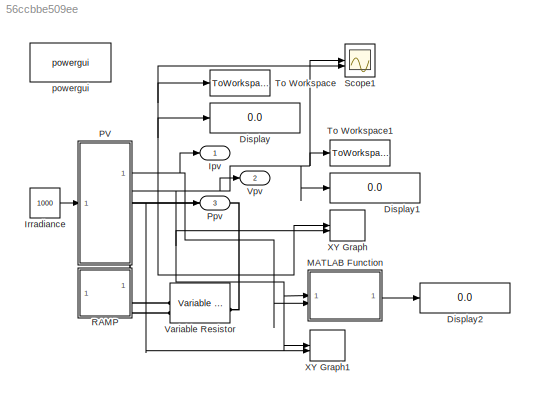
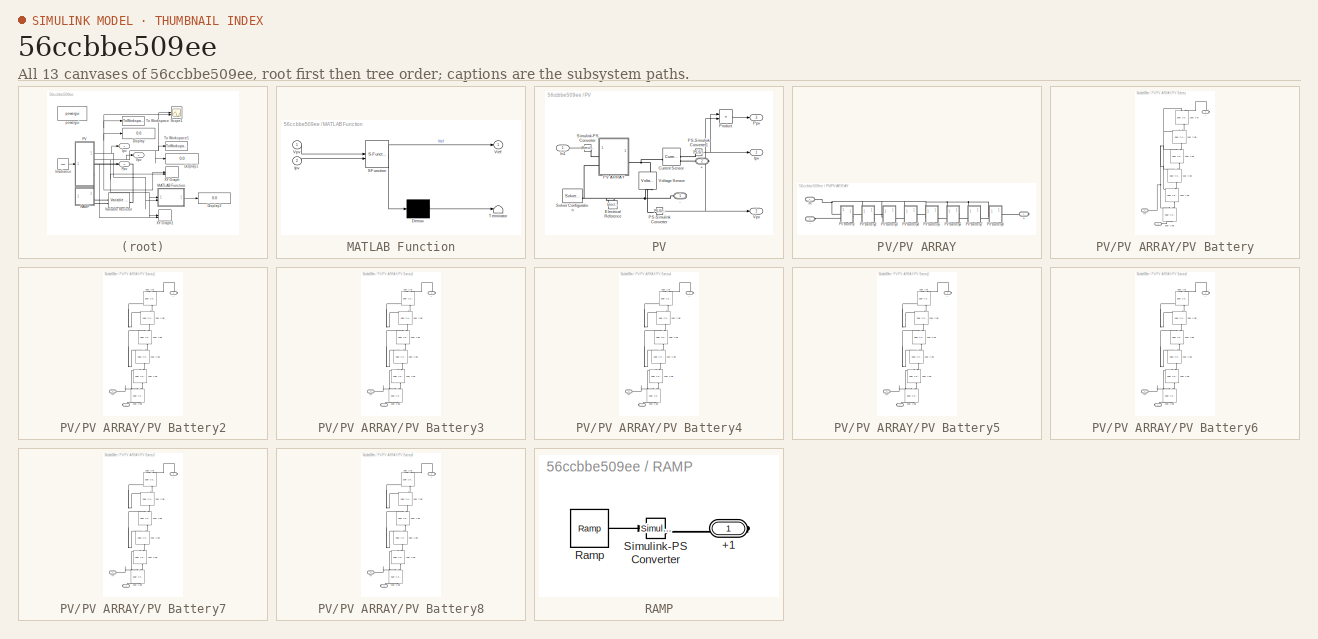
[diagram: thumbnail index - all 13 canvases of the model, root first then tree order]
MODEL slx_56ccbbe509ee
KIND model
CONFIG AbsTol = auto
CONFIG EnableMultiTasking = off
CONFIG FixedStep = auto
CONFIG MaxStep = auto
CONFIG MinStep = auto
CONFIG RelTol = 1e-3
CONFIG SampleTimeConstraint = Unconstrained
CONFIG SolverName = VariableStepAuto
CONFIG StartTime = 0.0
CONFIG StopTime = 0.5
BLOCK [Display] Display
  Decimation = 1
BLOCK [Display] Display1
  Decimation = 1
BLOCK [Display] Display2
  Decimation = 1
BLOCK [Outport] Ipv
BLOCK [Constant] Irradiance
  Value = 1000
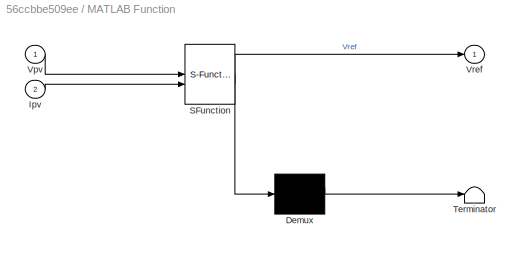
BLOCK [SubSystem] MATLAB Function
  ErrorFcn = Stateflow.Translate.translate
  PermitHierarchicalResolution = ExplicitOnly
  SFBlockType = MATLAB Function
  TreatAsAtomicUnit = on
BLOCK [Demux] MATLAB Function/ Demux 
  Outputs = 1
BLOCK [S-Function] MATLAB Function/ SFunction 
  EnableBusSupport = on
  FunctionName = sf_sfun
  PortCounts = [2 2]
  SFcnIsStateOwnerBlock = off
  SFunctionDeploymentMode = off
  Tag = Stateflow S-Function 2
BLOCK [Terminator] MATLAB Function/ Terminator 
BLOCK [Inport] MATLAB Function/Ipv
  Port = 2
BLOCK [Inport] MATLAB Function/Vpv
BLOCK [Outport] MATLAB Function/Vref
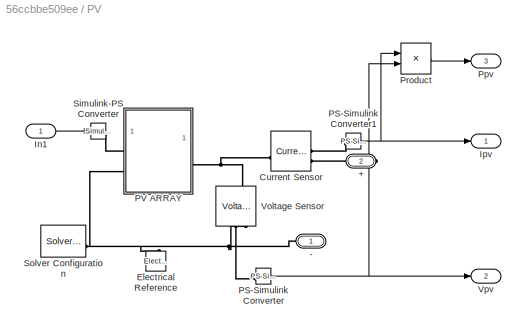
BLOCK [SubSystem] PV
  NameLocation = top
BLOCK [PMIOPort] PV/+
  Port = 2
  Side = Right
BLOCK [PMIOPort] PV/-
  NameLocation = top
  Side = Right
BLOCK [Reference] PV/Current Sensor  REF=fl_lib/Electrical/Electrical Sensors/Current Sensor
  SourceBlock = fl_lib/Electrical/Electrical Sensors/Current Sensor
  SourceType = Current Sensor
BLOCK [Reference] PV/Electrical Reference  REF=fl_lib/Electrical/Electrical Elements/Electrical Reference
  NameLocation = right
  SourceBlock = fl_lib/Electrical/Electrical Elements/Electrical Reference
  SourceType = Electrical Reference
BLOCK [Inport] PV/In1
BLOCK [Outport] PV/Ipv
BLOCK [Reference] PV/PS-Simulink Converter  REF=nesl_utility/PS-Simulink
Converter
  SourceBlock = nesl_utility/PS-Simulink\nConverter
  SourceType = PS-Simulink\nConverter
BLOCK [Reference] PV/PS-Simulink Converter1  REF=nesl_utility/PS-Simulink
Converter
  SourceBlock = nesl_utility/PS-Simulink\nConverter
  SourceType = PS-Simulink\nConverter
BLOCK [SubSystem] PV/PV ARRAY
BLOCK [PMIOPort] PV/PV ARRAY/+
  Port = 2
  Side = Right
BLOCK [PMIOPort] PV/PV ARRAY/-
  Port = 3
  Side = Left
BLOCK [PMIOPort] PV/PV ARRAY/IR
  Side = Left
BLOCK [SubSystem] PV/PV ARRAY/PV Battery
  NameLocation = top
  PortSchema = {"entries":[{"content":{"sides":[{"content":{"connectorIds":["LConn1","LConn2"]},"type":"ConnectorPlacement.EquallySpacedRectSide","uuid":"343a5c80-c490-4c63-968f-4227f8b0bc69"},{"content":{"side":"RIGHT"},"type":"ConnectorPlacement.EquallySpacedRectSide","uuid":"ee4aa178-7663-40d5-bcc3-f91d4c44b2a7"},{"content":{"side":"TOP"},"type":"ConnectorPlacement.EquallySpacedRectSide","uuid":"a03aa1aa-4889...<+362ch>
BLOCK [PMIOPort] PV/PV ARRAY/PV Battery/+
  NameLocation = top
  Port = 3
  Side = Right
BLOCK [PMIOPort] PV/PV ARRAY/PV Battery/-
  Port = 2
  Side = Left
BLOCK [PMIOPort] PV/PV ARRAY/PV Battery/IR
  Side = Left
BLOCK [Reference] PV/PV ARRAY/PV Battery/Solar Cell  REF=ee_lib/Sources/Solar Cell
  NameLocation = right
  SourceBlock = ee_lib/Sources/Solar Cell
  SourceType = Solar Cell
BLOCK [Reference] PV/PV ARRAY/PV Battery/Solar Cell1  REF=ee_lib/Sources/Solar Cell
  NameLocation = right
  SourceBlock = ee_lib/Sources/Solar Cell
  SourceType = Solar Cell
BLOCK [Reference] PV/PV ARRAY/PV Battery/Solar Cell2  REF=ee_lib/Sources/Solar Cell
  NameLocation = right
  SourceBlock = ee_lib/Sources/Solar Cell
  SourceType = Solar Cell
BLOCK [Reference] PV/PV ARRAY/PV Battery/Solar Cell3  REF=ee_lib/Sources/Solar Cell
  NameLocation = right
  SourceBlock = ee_lib/Sources/Solar Cell
  SourceType = Solar Cell
BLOCK [Reference] PV/PV ARRAY/PV Battery/Solar Cell4  REF=ee_lib/Sources/Solar Cell
  NameLocation = right
  SourceBlock = ee_lib/Sources/Solar Cell
  SourceType = Solar Cell
BLOCK [Reference] PV/PV ARRAY/PV Battery/Solar Cell5  REF=ee_lib/Sources/Solar Cell
  NameLocation = right
  SourceBlock = ee_lib/Sources/Solar Cell
  SourceType = Solar Cell
BLOCK [SubSystem] PV/PV ARRAY/PV Battery2
  NameLocation = top
  PortSchema = {"entries":[{"content":{"sides":[{"content":{"connectorIds":["LConn1"]},"type":"ConnectorPlacement.EquallySpacedRectSide","uuid":"343a5c80-c490-4c63-968f-4227f8b0bc69"},{"content":{"side":"RIGHT"},"type":"ConnectorPlacement.EquallySpacedRectSide","uuid":"ee4aa178-7663-40d5-bcc3-f91d4c44b2a7"},{"content":{"side":"TOP"},"type":"ConnectorPlacement.EquallySpacedRectSide","uuid":"a03aa1aa-4889-4cfe-9c8...<+362ch>  <repeated x6 — deduplicated; at blocks: PV Battery2, PV Battery3, PV Battery4, PV Battery5, PV Battery6, PV Battery7>
BLOCK [PMIOPort] PV/PV ARRAY/PV Battery2/+
  NameLocation = top
  Port = 3
  Side = Right
BLOCK [PMIOPort] PV/PV ARRAY/PV Battery2/-
  Port = 2
  Side = Right
BLOCK [PMIOPort] PV/PV ARRAY/PV Battery2/IR
  Side = Left
BLOCK [Reference] PV/PV ARRAY/PV Battery2/Solar Cell  REF=ee_lib/Sources/Solar Cell
  NameLocation = right
  SourceBlock = ee_lib/Sources/Solar Cell
  SourceType = Solar Cell
BLOCK [Reference] PV/PV ARRAY/PV Battery2/Solar Cell1  REF=ee_lib/Sources/Solar Cell
  NameLocation = right
  SourceBlock = ee_lib/Sources/Solar Cell
  SourceType = Solar Cell
BLOCK [Reference] PV/PV ARRAY/PV Battery2/Solar Cell2  REF=ee_lib/Sources/Solar Cell
  NameLocation = right
  SourceBlock = ee_lib/Sources/Solar Cell
  SourceType = Solar Cell
BLOCK [Reference] PV/PV ARRAY/PV Battery2/Solar Cell3  REF=ee_lib/Sources/Solar Cell
  NameLocation = right
  SourceBlock = ee_lib/Sources/Solar Cell
  SourceType = Solar Cell
BLOCK [Reference] PV/PV ARRAY/PV Battery2/Solar Cell4  REF=ee_lib/Sources/Solar Cell
  NameLocation = right
  SourceBlock = ee_lib/Sources/Solar Cell
  SourceType = Solar Cell
BLOCK [Reference] PV/PV ARRAY/PV Battery2/Solar Cell5  REF=ee_lib/Sources/Solar Cell
  NameLocation = right
  SourceBlock = ee_lib/Sources/Solar Cell
  SourceType = Solar Cell
BLOCK [SubSystem] PV/PV ARRAY/PV Battery3
  NameLocation = top
BLOCK [PMIOPort] PV/PV ARRAY/PV Battery3/+
  NameLocation = top
  Port = 3
  Side = Right
BLOCK [PMIOPort] PV/PV ARRAY/PV Battery3/-
  Port = 2
  Side = Right
BLOCK [PMIOPort] PV/PV ARRAY/PV Battery3/IR
  Side = Left
BLOCK [Reference] PV/PV ARRAY/PV Battery3/Solar Cell  REF=ee_lib/Sources/Solar Cell
  NameLocation = right
  SourceBlock = ee_lib/Sources/Solar Cell
  SourceType = Solar Cell
BLOCK [Reference] PV/PV ARRAY/PV Battery3/Solar Cell1  REF=ee_lib/Sources/Solar Cell
  NameLocation = right
  SourceBlock = ee_lib/Sources/Solar Cell
  SourceType = Solar Cell
BLOCK [Reference] PV/PV ARRAY/PV Battery3/Solar Cell2  REF=ee_lib/Sources/Solar Cell
  NameLocation = right
  SourceBlock = ee_lib/Sources/Solar Cell
  SourceType = Solar Cell
BLOCK [Reference] PV/PV ARRAY/PV Battery3/Solar Cell3  REF=ee_lib/Sources/Solar Cell
  NameLocation = right
  SourceBlock = ee_lib/Sources/Solar Cell
  SourceType = Solar Cell
BLOCK [Reference] PV/PV ARRAY/PV Battery3/Solar Cell4  REF=ee_lib/Sources/Solar Cell
  NameLocation = right
  SourceBlock = ee_lib/Sources/Solar Cell
  SourceType = Solar Cell
BLOCK [Reference] PV/PV ARRAY/PV Battery3/Solar Cell5  REF=ee_lib/Sources/Solar Cell
  NameLocation = right
  SourceBlock = ee_lib/Sources/Solar Cell
  SourceType = Solar Cell
BLOCK [SubSystem] PV/PV ARRAY/PV Battery4
  NameLocation = top
BLOCK [PMIOPort] PV/PV ARRAY/PV Battery4/+
  NameLocation = top
  Port = 3
  Side = Right
BLOCK [PMIOPort] PV/PV ARRAY/PV Battery4/-
  Port = 2
  Side = Right
BLOCK [PMIOPort] PV/PV ARRAY/PV Battery4/IR
  Side = Left
BLOCK [Reference] PV/PV ARRAY/PV Battery4/Solar Cell  REF=ee_lib/Sources/Solar Cell
  NameLocation = right
  SourceBlock = ee_lib/Sources/Solar Cell
  SourceType = Solar Cell
BLOCK [Reference] PV/PV ARRAY/PV Battery4/Solar Cell1  REF=ee_lib/Sources/Solar Cell
  NameLocation = right
  SourceBlock = ee_lib/Sources/Solar Cell
  SourceType = Solar Cell
BLOCK [Reference] PV/PV ARRAY/PV Battery4/Solar Cell2  REF=ee_lib/Sources/Solar Cell
  NameLocation = right
  SourceBlock = ee_lib/Sources/Solar Cell
  SourceType = Solar Cell
BLOCK [Reference] PV/PV ARRAY/PV Battery4/Solar Cell3  REF=ee_lib/Sources/Solar Cell
  NameLocation = right
  SourceBlock = ee_lib/Sources/Solar Cell
  SourceType = Solar Cell
BLOCK [Reference] PV/PV ARRAY/PV Battery4/Solar Cell4  REF=ee_lib/Sources/Solar Cell
  NameLocation = right
  SourceBlock = ee_lib/Sources/Solar Cell
  SourceType = Solar Cell
BLOCK [Reference] PV/PV ARRAY/PV Battery4/Solar Cell5  REF=ee_lib/Sources/Solar Cell
  NameLocation = right
  SourceBlock = ee_lib/Sources/Solar Cell
  SourceType = Solar Cell
BLOCK [SubSystem] PV/PV ARRAY/PV Battery5
  NameLocation = top
BLOCK [PMIOPort] PV/PV ARRAY/PV Battery5/+
  NameLocation = top
  Port = 3
  Side = Right
BLOCK [PMIOPort] PV/PV ARRAY/PV Battery5/-
  Port = 2
  Side = Right
BLOCK [PMIOPort] PV/PV ARRAY/PV Battery5/IR
  Side = Left
BLOCK [Reference] PV/PV ARRAY/PV Battery5/Solar Cell  REF=ee_lib/Sources/Solar Cell
  NameLocation = right
  SourceBlock = ee_lib/Sources/Solar Cell
  SourceType = Solar Cell
BLOCK [Reference] PV/PV ARRAY/PV Battery5/Solar Cell1  REF=ee_lib/Sources/Solar Cell
  NameLocation = right
  SourceBlock = ee_lib/Sources/Solar Cell
  SourceType = Solar Cell
BLOCK [Reference] PV/PV ARRAY/PV Battery5/Solar Cell2  REF=ee_lib/Sources/Solar Cell
  NameLocation = right
  SourceBlock = ee_lib/Sources/Solar Cell
  SourceType = Solar Cell
BLOCK [Reference] PV/PV ARRAY/PV Battery5/Solar Cell3  REF=ee_lib/Sources/Solar Cell
  NameLocation = right
  SourceBlock = ee_lib/Sources/Solar Cell
  SourceType = Solar Cell
BLOCK [Reference] PV/PV ARRAY/PV Battery5/Solar Cell4  REF=ee_lib/Sources/Solar Cell
  NameLocation = right
  SourceBlock = ee_lib/Sources/Solar Cell
  SourceType = Solar Cell
BLOCK [Reference] PV/PV ARRAY/PV Battery5/Solar Cell5  REF=ee_lib/Sources/Solar Cell
  NameLocation = right
  SourceBlock = ee_lib/Sources/Solar Cell
  SourceType = Solar Cell
BLOCK [SubSystem] PV/PV ARRAY/PV Battery6
  NameLocation = top
BLOCK [PMIOPort] PV/PV ARRAY/PV Battery6/+
  NameLocation = top
  Port = 3
  Side = Right
BLOCK [PMIOPort] PV/PV ARRAY/PV Battery6/-
  Port = 2
  Side = Right
BLOCK [PMIOPort] PV/PV ARRAY/PV Battery6/IR
  Side = Left
BLOCK [Reference] PV/PV ARRAY/PV Battery6/Solar Cell  REF=ee_lib/Sources/Solar Cell
  NameLocation = right
  SourceBlock = ee_lib/Sources/Solar Cell
  SourceType = Solar Cell
BLOCK [Reference] PV/PV ARRAY/PV Battery6/Solar Cell1  REF=ee_lib/Sources/Solar Cell
  NameLocation = right
  SourceBlock = ee_lib/Sources/Solar Cell
  SourceType = Solar Cell
BLOCK [Reference] PV/PV ARRAY/PV Battery6/Solar Cell2  REF=ee_lib/Sources/Solar Cell
  NameLocation = right
  SourceBlock = ee_lib/Sources/Solar Cell
  SourceType = Solar Cell
BLOCK [Reference] PV/PV ARRAY/PV Battery6/Solar Cell3  REF=ee_lib/Sources/Solar Cell
  NameLocation = right
  SourceBlock = ee_lib/Sources/Solar Cell
  SourceType = Solar Cell
BLOCK [Reference] PV/PV ARRAY/PV Battery6/Solar Cell4  REF=ee_lib/Sources/Solar Cell
  NameLocation = right
  SourceBlock = ee_lib/Sources/Solar Cell
  SourceType = Solar Cell
BLOCK [Reference] PV/PV ARRAY/PV Battery6/Solar Cell5  REF=ee_lib/Sources/Solar Cell
  NameLocation = right
  SourceBlock = ee_lib/Sources/Solar Cell
  SourceType = Solar Cell
BLOCK [SubSystem] PV/PV ARRAY/PV Battery7
  NameLocation = top
BLOCK [PMIOPort] PV/PV ARRAY/PV Battery7/+
  NameLocation = top
  Port = 3
  Side = Right
BLOCK [PMIOPort] PV/PV ARRAY/PV Battery7/-
  Port = 2
  Side = Right
BLOCK [PMIOPort] PV/PV ARRAY/PV Battery7/IR
  Side = Left
BLOCK [Reference] PV/PV ARRAY/PV Battery7/Solar Cell  REF=ee_lib/Sources/Solar Cell
  NameLocation = right
  SourceBlock = ee_lib/Sources/Solar Cell
  SourceType = Solar Cell
BLOCK [Reference] PV/PV ARRAY/PV Battery7/Solar Cell1  REF=ee_lib/Sources/Solar Cell
  NameLocation = right
  SourceBlock = ee_lib/Sources/Solar Cell
  SourceType = Solar Cell
BLOCK [Reference] PV/PV ARRAY/PV Battery7/Solar Cell2  REF=ee_lib/Sources/Solar Cell
  NameLocation = right
  SourceBlock = ee_lib/Sources/Solar Cell
  SourceType = Solar Cell
BLOCK [Reference] PV/PV ARRAY/PV Battery7/Solar Cell3  REF=ee_lib/Sources/Solar Cell
  NameLocation = right
  SourceBlock = ee_lib/Sources/Solar Cell
  SourceType = Solar Cell
BLOCK [Reference] PV/PV ARRAY/PV Battery7/Solar Cell4  REF=ee_lib/Sources/Solar Cell
  NameLocation = right
  SourceBlock = ee_lib/Sources/Solar Cell
  SourceType = Solar Cell
BLOCK [Reference] PV/PV ARRAY/PV Battery7/Solar Cell5  REF=ee_lib/Sources/Solar Cell
  NameLocation = right
  SourceBlock = ee_lib/Sources/Solar Cell
  SourceType = Solar Cell
BLOCK [SubSystem] PV/PV ARRAY/PV Battery8
  NameLocation = top
  PortSchema = {"entries":[{"content":{"sides":[{"content":{"connectorIds":["LConn1"]},"type":"ConnectorPlacement.EquallySpacedRectSide","uuid":"343a5c80-c490-4c63-968f-4227f8b0bc69"},{"content":{"connectorIds":["RConn1"],"side":"RIGHT"},"type":"ConnectorPlacement.EquallySpacedRectSide","uuid":"ee4aa178-7663-40d5-bcc3-f91d4c44b2a7"},{"content":{"side":"TOP"},"type":"ConnectorPlacement.EquallySpacedRectSide","uui...<+379ch>
BLOCK [PMIOPort] PV/PV ARRAY/PV Battery8/+
  NameLocation = top
  Port = 2
  Side = Right
BLOCK [PMIOPort] PV/PV ARRAY/PV Battery8/-
  Port = 3
  Side = Right
BLOCK [PMIOPort] PV/PV ARRAY/PV Battery8/IR
  Side = Left
BLOCK [Reference] PV/PV ARRAY/PV Battery8/Solar Cell  REF=ee_lib/Sources/Solar Cell
  NameLocation = right
  SourceBlock = ee_lib/Sources/Solar Cell
  SourceType = Solar Cell
BLOCK [Reference] PV/PV ARRAY/PV Battery8/Solar Cell1  REF=ee_lib/Sources/Solar Cell
  NameLocation = right
  SourceBlock = ee_lib/Sources/Solar Cell
  SourceType = Solar Cell
BLOCK [Reference] PV/PV ARRAY/PV Battery8/Solar Cell2  REF=ee_lib/Sources/Solar Cell
  NameLocation = right
  SourceBlock = ee_lib/Sources/Solar Cell
  SourceType = Solar Cell
BLOCK [Reference] PV/PV ARRAY/PV Battery8/Solar Cell3  REF=ee_lib/Sources/Solar Cell
  NameLocation = right
  SourceBlock = ee_lib/Sources/Solar Cell
  SourceType = Solar Cell
BLOCK [Reference] PV/PV ARRAY/PV Battery8/Solar Cell4  REF=ee_lib/Sources/Solar Cell
  NameLocation = right
  SourceBlock = ee_lib/Sources/Solar Cell
  SourceType = Solar Cell
BLOCK [Reference] PV/PV ARRAY/PV Battery8/Solar Cell5  REF=ee_lib/Sources/Solar Cell
  NameLocation = right
  SourceBlock = ee_lib/Sources/Solar Cell
  SourceType = Solar Cell
BLOCK [Outport] PV/Ppv
  Port = 3
BLOCK [Product] PV/Product
BLOCK [Reference] PV/Simulink-PS Converter  REF=nesl_utility/Simulink-PS
Converter
  SourceBlock = nesl_utility/Simulink-PS\nConverter
  SourceType = Simulink-PS\nConverter
BLOCK [Reference] PV/Solver Configuration  REF=nesl_utility/Solver
Configuration
  SourceBlock = nesl_utility/Solver\nConfiguration
  SourceType = Solver\nConfiguration
BLOCK [Reference] PV/Voltage Sensor  REF=fl_lib/Electrical/Electrical Sensors/Voltage Sensor
  NameLocation = right
  SourceBlock = fl_lib/Electrical/Electrical Sensors/Voltage Sensor
  SourceType = Voltage Sensor
BLOCK [Outport] PV/Vpv
  Port = 2
BLOCK [Outport] Ppv
  NameLocation = top
  Port = 3
BLOCK [SubSystem] RAMP
BLOCK [PMIOPort] RAMP/+1
  Side = Right
BLOCK [Reference] RAMP/Ramp  REF=simulink/Sources/Ramp
  SourceBlock = simulink/Sources/Ramp
  SourceType = Ramp
BLOCK [Reference] RAMP/Simulink-PS Converter  REF=nesl_utility/Simulink-PS
Converter
  SourceBlock = nesl_utility/Simulink-PS\nConverter
  SourceType = Simulink-PS\nConverter
BLOCK [Scope] Scope1
  Floating = off
  NumInputPorts = 2
  ScopeSpecificationString = Simulink.scopes.TimeScopeBlockCfg('CurrentConfiguration', extmgr.ConfigurationSet(extmgr.Configuration('Core','General UI',true),extmgr.Configuration('Core','Source UI',true),extmgr.Configuration('Sources','WiredSimulink',true,'DataLoggingVariableName','ScopeData1'),extmgr.Configuration('Visuals','Time Domain',true,'SerializedDisplays',{struct('MinYLimReal','-3.59635','MaxYLimReal','32.36712','YLa...<+2198ch>
BLOCK [ToWorkspace] To Workspace
  FixptAsFi = on
  MaxDataPoints = inf
  SampleTime = -1
  SaveFormat = Timeseries
  VariableName = simout
BLOCK [ToWorkspace] To Workspace1
  FixptAsFi = on
  MaxDataPoints = inf
  SampleTime = -1
  SaveFormat = Timeseries
  VariableName = simout1
BLOCK [Reference] Variable Resistor  REF=fl_lib/Electrical/Electrical Elements/Variable Resistor
  SourceBlock = fl_lib/Electrical/Electrical Elements/Variable Resistor
  SourceType = Variable Resistor
BLOCK [Outport] Vpv
  Port = 2
BLOCK [Record] XY Graph
  CompatibilityTag = XY
  FileSettingsInternal = {"entries":[{"content":{"excelSettings":{"content":{},"type":"Streamout.ExcelSettings"}},"type":"Streamout.FileSettingStorage","uuid":""}],"packageUris":["http:\/\/schema.mathworks.com\/mf0\/streamout_blocks\/R2020a"],"version":"1.0"}
  Layout = [1 1]
  SignalsInternal = {"entries":[{"content":{"signals":[{"content":{"blockPath":[],"dimensions":[1],"domain":"","lineColor":"#a2142f","plots":[ 1 ],"port":1,"signalID":1,"signalName":"PV:1"},"type":"RecordBlkView.Signal","uuid":""},{"content":{"blockPath":[],"dimensions":[1],"domain":"","lineColor":"#139fff","plots":[ 1 ],"port":2,"signalID":2,"signalName":"PV:2"},"type":"RecordBlkView.Signal","uuid":""}]},"type":"Rec...<+132ch>
  VisualizationBindings = {"xyplotplugin":{"info":[{"series":[{"bindingParametersList":[{"parameter":"X-Axis","signalID":1,"signalName":"PV:1"},{"parameter":"Y-Axis","signalID":2,"signalName":"PV:2"}],"seriesID":0}],"subplotID":1}]}}
BLOCK [Record] XY Graph1
  CompatibilityTag = XY
  FileSettingsInternal = {"entries":[{"content":{"excelSettings":{"content":{},"type":"Streamout.ExcelSettings"}},"type":"Streamout.FileSettingStorage","uuid":""}],"packageUris":["http:\/\/schema.mathworks.com\/mf0\/streamout_blocks\/R2020a"],"version":"1.0"}
  Layout = [1 1]
  SignalsInternal = {"entries":[{"content":{"signals":[{"content":{"blockPath":[],"dimensions":[1],"domain":"","lineColor":"#a2142f","plots":[ 1 ],"port":1,"signalID":1,"signalName":"Vpv"},"type":"RecordBlkView.Signal","uuid":""},{"content":{"blockPath":[],"dimensions":[1],"domain":"","lineColor":"#139fff","plots":[ 1 ],"port":2,"signalID":2,"signalName":"Ppv"},"type":"RecordBlkView.Signal","uuid":""}]},"type":"Recor...<+130ch>
  VisualizationBindings = {"xyplotplugin":{"info":[{"series":[{"bindingParametersList":[{"parameter":"X-Axis","signalID":1,"signalName":"Vpv"},{"parameter":"Y-Axis","signalID":2,"signalName":"Ppv"}],"seriesID":0}],"subplotID":1}]}}
BLOCK [Reference] powergui  REF=spspowerguiLib/powergui
  LibrarySourceBlock = sps_lib/powergui
  Priority = 1
  SourceBlock = spspowerguiLib/powergui
  SourceType = PSB option menu block
LINE Irradiance:1 -> PV:1
LINE MATLAB Function:1 -> Display2:1
LINE PV/In1:1 -> PV/Simulink-PS Converter:1
NET PV/PS-Simulink Converter1:1 -> PV/Ipv:1, PV/Product:1
NET PV/PS-Simulink Converter:1 -> PV/Product:2, PV/Vpv:1
LINE PV/Product:1 -> PV/Ppv:1
NET PV:1 -> Display:1, Ipv:1, MATLAB Function:2, Scope1:2, To Workspace:1, XY Graph:1
NET PV:2 -> Display1:1, MATLAB Function:1, Scope1:1, To Workspace1:1, Vpv:1, XY Graph1:1, XY Graph:2
NET PV:3 -> Ppv:1, XY Graph1:2
LINE RAMP/Ramp:1 -> RAMP/Simulink-PS Converter:1
PLINE PV/+:RConn1 -- PV/Current Sensor:RConn2
PNET net1: PV/-:RConn1 -- PV/Electrical Reference:LConn1 -- PV/PV ARRAY:LConn2 -- PV/Solver Configuration:RConn1 -- PV/Voltage Sensor:RConn2
PNET net2: PV/Current Sensor:LConn1 -- PV/PV ARRAY:RConn1 -- PV/Voltage Sensor:LConn1
PLINE PV/Current Sensor:RConn1 -- PV/PS-Simulink Converter1:LConn1
PLINE PV/PS-Simulink Converter:LConn1 -- PV/Voltage Sensor:RConn1
PLINE PV/PV ARRAY/+:RConn1 -- PV/PV ARRAY/PV Battery8:RConn1
PLINE PV/PV ARRAY/-:RConn1 -- PV/PV ARRAY/PV Battery:LConn2
PNET net3: PV/PV ARRAY/IR:RConn1 -- PV/PV ARRAY/PV Battery2:LConn1 -- PV/PV ARRAY/PV Battery3:LConn1 -- PV/PV ARRAY/PV Battery4:LConn1 -- PV/PV ARRAY/PV Battery5:LConn1 -- PV/PV ARRAY/PV Battery6:LConn1 -- PV/PV ARRAY/PV Battery7:LConn1 -- PV/PV ARRAY/PV Battery8:LConn1 -- PV/PV ARRAY/PV Battery:LConn1
PLINE PV/PV ARRAY/PV Battery/+:RConn1 -- PV/PV ARRAY/PV Battery/Solar Cell:LConn2
PLINE PV/PV ARRAY/PV Battery/-:RConn1 -- PV/PV ARRAY/PV Battery/Solar Cell5:RConn1
PNET net4: PV/PV ARRAY/PV Battery/IR:RConn1 -- PV/PV ARRAY/PV Battery/Solar Cell1:LConn1 -- PV/PV ARRAY/PV Battery/Solar Cell2:LConn1 -- PV/PV ARRAY/PV Battery/Solar Cell3:LConn1 -- PV/PV ARRAY/PV Battery/Solar Cell4:LConn1 -- PV/PV ARRAY/PV Battery/Solar Cell5:LConn1 -- PV/PV ARRAY/PV Battery/Solar Cell:LConn1
PLINE PV/PV ARRAY/PV Battery/Solar Cell1:LConn2 -- PV/PV ARRAY/PV Battery/Solar Cell2:RConn1
PLINE PV/PV ARRAY/PV Battery/Solar Cell1:RConn1 -- PV/PV ARRAY/PV Battery/Solar Cell3:LConn2
PLINE PV/PV ARRAY/PV Battery/Solar Cell2:LConn2 -- PV/PV ARRAY/PV Battery/Solar Cell:RConn1
PLINE PV/PV ARRAY/PV Battery/Solar Cell3:RConn1 -- PV/PV ARRAY/PV Battery/Solar Cell4:LConn2
PLINE PV/PV ARRAY/PV Battery/Solar Cell4:RConn1 -- PV/PV ARRAY/PV Battery/Solar Cell5:LConn2
PLINE PV/PV ARRAY/PV Battery2/+:RConn1 -- PV/PV ARRAY/PV Battery2/Solar Cell:LConn2
PLINE PV/PV ARRAY/PV Battery2/-:RConn1 -- PV/PV ARRAY/PV Battery2/Solar Cell5:RConn1
PNET net5: PV/PV ARRAY/PV Battery2/IR:RConn1 -- PV/PV ARRAY/PV Battery2/Solar Cell1:LConn1 -- PV/PV ARRAY/PV Battery2/Solar Cell2:LConn1 -- PV/PV ARRAY/PV Battery2/Solar Cell3:LConn1 -- PV/PV ARRAY/PV Battery2/Solar Cell4:LConn1 -- PV/PV ARRAY/PV Battery2/Solar Cell5:LConn1 -- PV/PV ARRAY/PV Battery2/Solar Cell:LConn1
PLINE PV/PV ARRAY/PV Battery2/Solar Cell1:LConn2 -- PV/PV ARRAY/PV Battery2/Solar Cell2:RConn1
PLINE PV/PV ARRAY/PV Battery2/Solar Cell1:RConn1 -- PV/PV ARRAY/PV Battery2/Solar Cell3:LConn2
PLINE PV/PV ARRAY/PV Battery2/Solar Cell2:LConn2 -- PV/PV ARRAY/PV Battery2/Solar Cell:RConn1
PLINE PV/PV ARRAY/PV Battery2/Solar Cell3:RConn1 -- PV/PV ARRAY/PV Battery2/Solar Cell4:LConn2
PLINE PV/PV ARRAY/PV Battery2/Solar Cell4:RConn1 -- PV/PV ARRAY/PV Battery2/Solar Cell5:LConn2
PLINE PV/PV ARRAY/PV Battery2:RConn1 -- PV/PV ARRAY/PV Battery:RConn1
PLINE PV/PV ARRAY/PV Battery2:RConn2 -- PV/PV ARRAY/PV Battery3:RConn1
PLINE PV/PV ARRAY/PV Battery3/+:RConn1 -- PV/PV ARRAY/PV Battery3/Solar Cell:LConn2
PLINE PV/PV ARRAY/PV Battery3/-:RConn1 -- PV/PV ARRAY/PV Battery3/Solar Cell5:RConn1
PNET net6: PV/PV ARRAY/PV Battery3/IR:RConn1 -- PV/PV ARRAY/PV Battery3/Solar Cell1:LConn1 -- PV/PV ARRAY/PV Battery3/Solar Cell2:LConn1 -- PV/PV ARRAY/PV Battery3/Solar Cell3:LConn1 -- PV/PV ARRAY/PV Battery3/Solar Cell4:LConn1 -- PV/PV ARRAY/PV Battery3/Solar Cell5:LConn1 -- PV/PV ARRAY/PV Battery3/Solar Cell:LConn1
PLINE PV/PV ARRAY/PV Battery3/Solar Cell1:LConn2 -- PV/PV ARRAY/PV Battery3/Solar Cell2:RConn1
PLINE PV/PV ARRAY/PV Battery3/Solar Cell1:RConn1 -- PV/PV ARRAY/PV Battery3/Solar Cell3:LConn2
PLINE PV/PV ARRAY/PV Battery3/Solar Cell2:LConn2 -- PV/PV ARRAY/PV Battery3/Solar Cell:RConn1
PLINE PV/PV ARRAY/PV Battery3/Solar Cell3:RConn1 -- PV/PV ARRAY/PV Battery3/Solar Cell4:LConn2
PLINE PV/PV ARRAY/PV Battery3/Solar Cell4:RConn1 -- PV/PV ARRAY/PV Battery3/Solar Cell5:LConn2
PLINE PV/PV ARRAY/PV Battery3:RConn2 -- PV/PV ARRAY/PV Battery4:RConn1
PLINE PV/PV ARRAY/PV Battery4/+:RConn1 -- PV/PV ARRAY/PV Battery4/Solar Cell:LConn2
PLINE PV/PV ARRAY/PV Battery4/-:RConn1 -- PV/PV ARRAY/PV Battery4/Solar Cell5:RConn1
PNET net7: PV/PV ARRAY/PV Battery4/IR:RConn1 -- PV/PV ARRAY/PV Battery4/Solar Cell1:LConn1 -- PV/PV ARRAY/PV Battery4/Solar Cell2:LConn1 -- PV/PV ARRAY/PV Battery4/Solar Cell3:LConn1 -- PV/PV ARRAY/PV Battery4/Solar Cell4:LConn1 -- PV/PV ARRAY/PV Battery4/Solar Cell5:LConn1 -- PV/PV ARRAY/PV Battery4/Solar Cell:LConn1
PLINE PV/PV ARRAY/PV Battery4/Solar Cell1:LConn2 -- PV/PV ARRAY/PV Battery4/Solar Cell2:RConn1
PLINE PV/PV ARRAY/PV Battery4/Solar Cell1:RConn1 -- PV/PV ARRAY/PV Battery4/Solar Cell3:LConn2
PLINE PV/PV ARRAY/PV Battery4/Solar Cell2:LConn2 -- PV/PV ARRAY/PV Battery4/Solar Cell:RConn1
PLINE PV/PV ARRAY/PV Battery4/Solar Cell3:RConn1 -- PV/PV ARRAY/PV Battery4/Solar Cell4:LConn2
PLINE PV/PV ARRAY/PV Battery4/Solar Cell4:RConn1 -- PV/PV ARRAY/PV Battery4/Solar Cell5:LConn2
PLINE PV/PV ARRAY/PV Battery4:RConn2 -- PV/PV ARRAY/PV Battery5:RConn1
PLINE PV/PV ARRAY/PV Battery5/+:RConn1 -- PV/PV ARRAY/PV Battery5/Solar Cell:LConn2
PLINE PV/PV ARRAY/PV Battery5/-:RConn1 -- PV/PV ARRAY/PV Battery5/Solar Cell5:RConn1
PNET net8: PV/PV ARRAY/PV Battery5/IR:RConn1 -- PV/PV ARRAY/PV Battery5/Solar Cell1:LConn1 -- PV/PV ARRAY/PV Battery5/Solar Cell2:LConn1 -- PV/PV ARRAY/PV Battery5/Solar Cell3:LConn1 -- PV/PV ARRAY/PV Battery5/Solar Cell4:LConn1 -- PV/PV ARRAY/PV Battery5/Solar Cell5:LConn1 -- PV/PV ARRAY/PV Battery5/Solar Cell:LConn1
PLINE PV/PV ARRAY/PV Battery5/Solar Cell1:LConn2 -- PV/PV ARRAY/PV Battery5/Solar Cell2:RConn1
PLINE PV/PV ARRAY/PV Battery5/Solar Cell1:RConn1 -- PV/PV ARRAY/PV Battery5/Solar Cell3:LConn2
PLINE PV/PV ARRAY/PV Battery5/Solar Cell2:LConn2 -- PV/PV ARRAY/PV Battery5/Solar Cell:RConn1
PLINE PV/PV ARRAY/PV Battery5/Solar Cell3:RConn1 -- PV/PV ARRAY/PV Battery5/Solar Cell4:LConn2
PLINE PV/PV ARRAY/PV Battery5/Solar Cell4:RConn1 -- PV/PV ARRAY/PV Battery5/Solar Cell5:LConn2
PLINE PV/PV ARRAY/PV Battery5:RConn2 -- PV/PV ARRAY/PV Battery6:RConn1
PLINE PV/PV ARRAY/PV Battery6/+:RConn1 -- PV/PV ARRAY/PV Battery6/Solar Cell:LConn2
PLINE PV/PV ARRAY/PV Battery6/-:RConn1 -- PV/PV ARRAY/PV Battery6/Solar Cell5:RConn1
PNET net9: PV/PV ARRAY/PV Battery6/IR:RConn1 -- PV/PV ARRAY/PV Battery6/Solar Cell1:LConn1 -- PV/PV ARRAY/PV Battery6/Solar Cell2:LConn1 -- PV/PV ARRAY/PV Battery6/Solar Cell3:LConn1 -- PV/PV ARRAY/PV Battery6/Solar Cell4:LConn1 -- PV/PV ARRAY/PV Battery6/Solar Cell5:LConn1 -- PV/PV ARRAY/PV Battery6/Solar Cell:LConn1
PLINE PV/PV ARRAY/PV Battery6/Solar Cell1:LConn2 -- PV/PV ARRAY/PV Battery6/Solar Cell2:RConn1
PLINE PV/PV ARRAY/PV Battery6/Solar Cell1:RConn1 -- PV/PV ARRAY/PV Battery6/Solar Cell3:LConn2
PLINE PV/PV ARRAY/PV Battery6/Solar Cell2:LConn2 -- PV/PV ARRAY/PV Battery6/Solar Cell:RConn1
PLINE PV/PV ARRAY/PV Battery6/Solar Cell3:RConn1 -- PV/PV ARRAY/PV Battery6/Solar Cell4:LConn2
PLINE PV/PV ARRAY/PV Battery6/Solar Cell4:RConn1 -- PV/PV ARRAY/PV Battery6/Solar Cell5:LConn2
PLINE PV/PV ARRAY/PV Battery6:RConn2 -- PV/PV ARRAY/PV Battery7:RConn1
PLINE PV/PV ARRAY/PV Battery7/+:RConn1 -- PV/PV ARRAY/PV Battery7/Solar Cell:LConn2
PLINE PV/PV ARRAY/PV Battery7/-:RConn1 -- PV/PV ARRAY/PV Battery7/Solar Cell5:RConn1
PNET net10: PV/PV ARRAY/PV Battery7/IR:RConn1 -- PV/PV ARRAY/PV Battery7/Solar Cell1:LConn1 -- PV/PV ARRAY/PV Battery7/Solar Cell2:LConn1 -- PV/PV ARRAY/PV Battery7/Solar Cell3:LConn1 -- PV/PV ARRAY/PV Battery7/Solar Cell4:LConn1 -- PV/PV ARRAY/PV Battery7/Solar Cell5:LConn1 -- PV/PV ARRAY/PV Battery7/Solar Cell:LConn1
PLINE PV/PV ARRAY/PV Battery7/Solar Cell1:LConn2 -- PV/PV ARRAY/PV Battery7/Solar Cell2:RConn1
PLINE PV/PV ARRAY/PV Battery7/Solar Cell1:RConn1 -- PV/PV ARRAY/PV Battery7/Solar Cell3:LConn2
PLINE PV/PV ARRAY/PV Battery7/Solar Cell2:LConn2 -- PV/PV ARRAY/PV Battery7/Solar Cell:RConn1
PLINE PV/PV ARRAY/PV Battery7/Solar Cell3:RConn1 -- PV/PV ARRAY/PV Battery7/Solar Cell4:LConn2
PLINE PV/PV ARRAY/PV Battery7/Solar Cell4:RConn1 -- PV/PV ARRAY/PV Battery7/Solar Cell5:LConn2
PLINE PV/PV ARRAY/PV Battery7:RConn2 -- PV/PV ARRAY/PV Battery8:RConn2
PLINE PV/PV ARRAY/PV Battery8/+:RConn1 -- PV/PV ARRAY/PV Battery8/Solar Cell:LConn2
PLINE PV/PV ARRAY/PV Battery8/-:RConn1 -- PV/PV ARRAY/PV Battery8/Solar Cell5:RConn1
PNET net11: PV/PV ARRAY/PV Battery8/IR:RConn1 -- PV/PV ARRAY/PV Battery8/Solar Cell1:LConn1 -- PV/PV ARRAY/PV Battery8/Solar Cell2:LConn1 -- PV/PV ARRAY/PV Battery8/Solar Cell3:LConn1 -- PV/PV ARRAY/PV Battery8/Solar Cell4:LConn1 -- PV/PV ARRAY/PV Battery8/Solar Cell5:LConn1 -- PV/PV ARRAY/PV Battery8/Solar Cell:LConn1
PLINE PV/PV ARRAY/PV Battery8/Solar Cell1:LConn2 -- PV/PV ARRAY/PV Battery8/Solar Cell2:RConn1
PLINE PV/PV ARRAY/PV Battery8/Solar Cell1:RConn1 -- PV/PV ARRAY/PV Battery8/Solar Cell3:LConn2
PLINE PV/PV ARRAY/PV Battery8/Solar Cell2:LConn2 -- PV/PV ARRAY/PV Battery8/Solar Cell:RConn1
PLINE PV/PV ARRAY/PV Battery8/Solar Cell3:RConn1 -- PV/PV ARRAY/PV Battery8/Solar Cell4:LConn2
PLINE PV/PV ARRAY/PV Battery8/Solar Cell4:RConn1 -- PV/PV ARRAY/PV Battery8/Solar Cell5:LConn2
PLINE PV/PV ARRAY:LConn1 -- PV/Simulink-PS Converter:RConn1
PLINE PV:RConn1 -- Variable Resistor:RConn1
PLINE PV:RConn2 -- Variable Resistor:LConn2
PLINE RAMP/+1:RConn1 -- RAMP/Simulink-PS Converter:RConn1
PLINE RAMP:RConn1 -- Variable Resistor:LConn1
note: NET lines group one-source signal fan-out (src -> all destinations, sorted); 1:1 wires keep LINE; PNET lines group multi-terminal physical nets as a canonical sorted terminal list (undirected conserving connections); 2-terminal nets keep the pairwise PLINE form
CHART MATLAB Function states=1 transitions=1
  STATE_LABEL 'eML_blk_kernel()'
  STATE_LABEL 'SCRIPT:\nfunction Vref=fcn(Vpv,Ipv)\nV=52;\nI=0.001;\nP=V*I;\nc=0.11;\nPnew=Vpv*Ipv;\nif (Pnew>P)\n    if(Vpv>V)\n        Vpv=V+c;\n    else\n        Vpv=V-c;\n    end\nelse\n    if(Vpv<V)\n        Vpv=V+c;\n    else\n        Vpv=V-c;\n    end\nend\nV=Vpv;\nI=Ipv;\nP=Pnew;\nVref=Vpv;'
CHART  states=0 transitions=0
